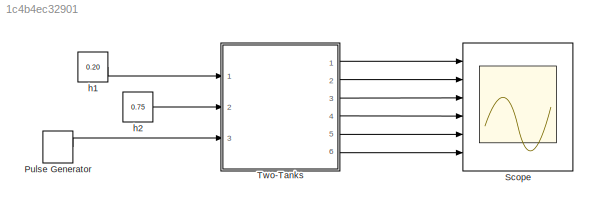
MODEL slx_1c4b4ec32901
KIND model
BLOCK [DiscretePulseGenerator] Pulse Generator
  Period = 1
  Ports = [0, 1]
  PulseType = Time based
  PulseWidth = 50
BLOCK [Scope] Scope
  Floating = off
  NumInputPorts = 6
  Ports = [6]
  ShowLegends = on
  TimeRange = 4
  YMax = 3~0.1~1~0.1~0.5~0.15
  YMin = -2~-0.01~0~-0.1~-0.5~-0.05
  ZoomMode = xonly
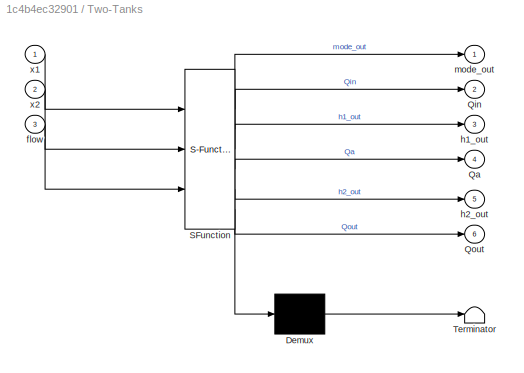
BLOCK [SubSystem] Two-Tanks
  ErrorFcn = Stateflow.Translate.translate
  PermitHierarchicalResolution = ExplicitOnly
  Ports = [3, 6]
  RequestExecContextInheritance = off
  SFBlockType = Chart
  TreatAsAtomicUnit = on
BLOCK [Demux] Two-Tanks/ Demux 
  Outputs = 1
  Ports = [1, 1]
BLOCK [S-Function] Two-Tanks/ SFunction 
  EnableBusSupport = on
  FunctionName = sf_sfun
  PortCounts = [3 7]
  Ports = [3, 7]
  Tag = Stateflow S-Function hw8_two_tanks 3
BLOCK [Terminator] Two-Tanks/ Terminator 
BLOCK [Outport] Two-Tanks/Qa
  IconDisplay = Port number
  Port = 4
BLOCK [Outport] Two-Tanks/Qin
  IconDisplay = Port number
  Port = 2
BLOCK [Outport] Two-Tanks/Qout
  IconDisplay = Port number
  Port = 6
BLOCK [Inport] Two-Tanks/flow
  IconDisplay = Port number
  Port = 3
BLOCK [Outport] Two-Tanks/h1_out
  IconDisplay = Port number
  Port = 3
BLOCK [Outport] Two-Tanks/h2_out
  IconDisplay = Port number
  Port = 5
BLOCK [Outport] Two-Tanks/mode_out
  IconDisplay = Port number
BLOCK [Inport] Two-Tanks/x1
  IconDisplay = Port number
BLOCK [Inport] Two-Tanks/x2
  IconDisplay = Port number
  Port = 2
BLOCK [Constant] h1
  Value = 0.20
BLOCK [Constant] h2
  Value = 0.75
LINE Pulse Generator:1 -> Two-Tanks:3
LINE Two-Tanks:1 -> Scope:1
LINE Two-Tanks:2 -> Scope:2
LINE Two-Tanks:3 -> Scope:3
LINE Two-Tanks:4 -> Scope:4
LINE Two-Tanks:5 -> Scope:5
LINE Two-Tanks:6 -> Scope:6
LINE h1:1 -> Two-Tanks:1
LINE h2:1 -> Two-Tanks:2
